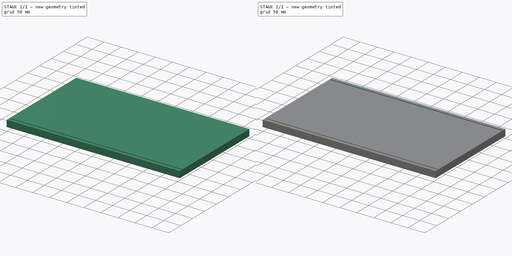
[diagram: build sequence overview — one tinted view per stage of 2, left to right]
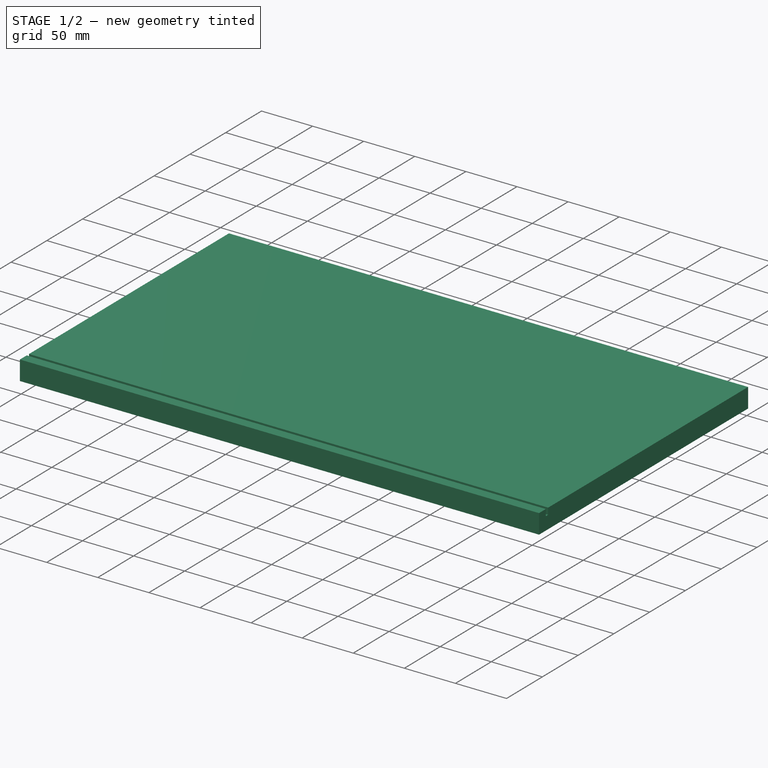
[diagram: stage 1 of 2 — iso view after this stage's code; geometry added in this stage tinted green]
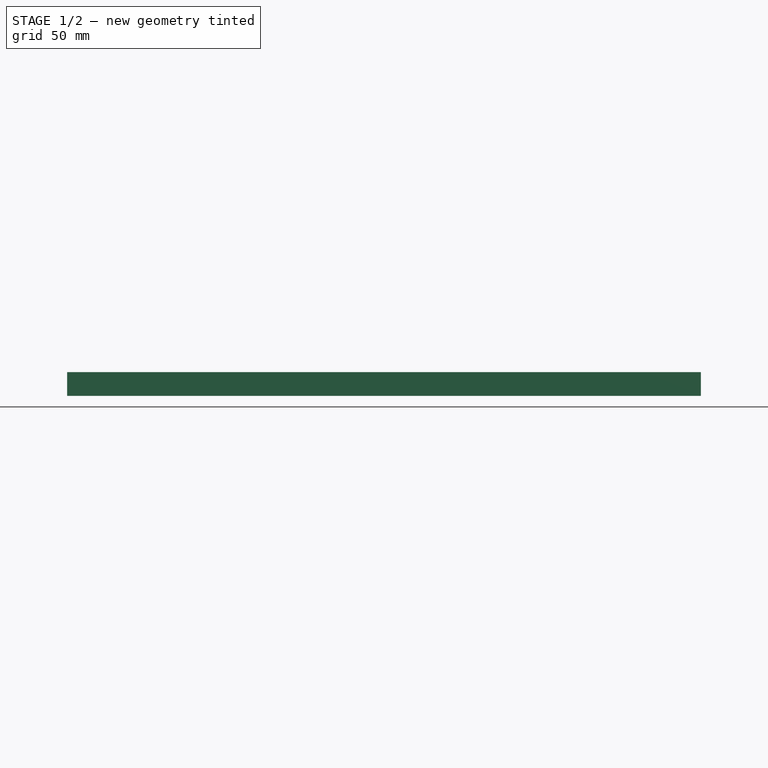
[diagram: stage 1 of 2 — front view after this stage's code; geometry added in this stage tinted green]
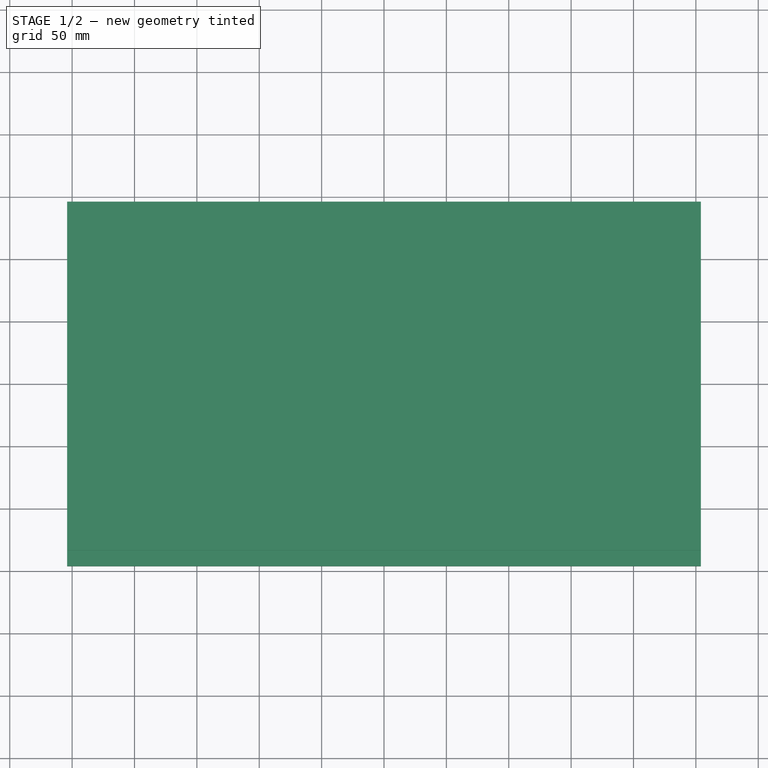
[diagram: stage 1 of 2 — top view after this stage's code; geometry added in this stage tinted green]
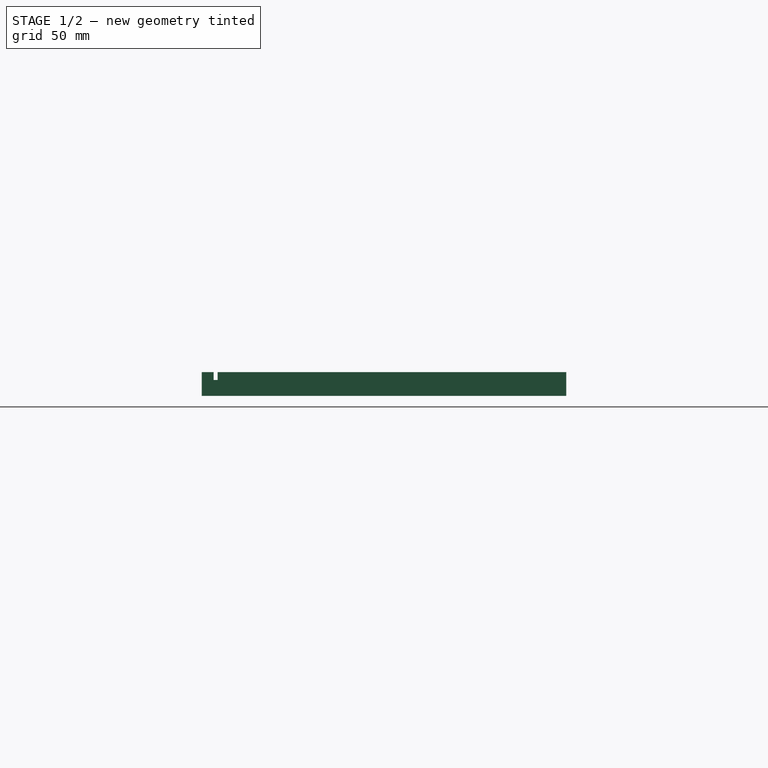
[diagram: stage 1 of 2 — right view after this stage's code; geometry added in this stage tinted green]
FCSTD DOCUMENT  (FreeCAD 0.19R24291 (Git))
Label: botpanel
License: All rights reserved
LicenseURL: http://en.wikipedia.org/wiki/All_rights_reserved
objects: PartDesign::SubtractiveBox×2, Sketcher::SketchObject×1, PartDesign::Pad×1, PartDesign::Body×1
note: 8 computed .brp shape members not serialized (recipe doc carries the construction recipe); baked Part::Feature solids carry a one-line shape summary decoded from their .brp

FEATURE [Sketcher::SketchObject] Sketch
  FullyConstrained = false
  MapMode = 5
  Support = -> [XY_Plane001]
  sketch-geometry (4):
    g0: LineSegment StartX=-254 StartY=-146.05 StartZ=0 EndX=254 EndY=-146.05 EndZ=0
    g1: LineSegment StartX=254 StartY=-146.05 StartZ=0 EndX=254 EndY=146.05 EndZ=0
    g2: LineSegment StartX=254 StartY=146.05 StartZ=0 EndX=-254 EndY=146.05 EndZ=0
    g3: LineSegment StartX=-254 StartY=146.05 StartZ=0 EndX=-254 EndY=-146.05 EndZ=0
  constraints (8):
    c: Coincident(g0,g1)
    c: Coincident(g1,g2)
    c: Coincident(g2,g3)
    c: Coincident(g3,g0)
    c: Horizontal(g0)
    c: Horizontal(g2)
    c: Vertical(g1)
    c: Vertical(g3)
FEATURE [PartDesign::Pad] Pad
  Direction = (1,1,1)
  Length = 19.05
  Length2 = 99.9998
  Profile = -> Sketch
  Refine = true
  Type = 0
FEATURE [PartDesign::SubtractiveBox] Box
  AttacherType = Attacher::AttachEngine3D
  AttachmentOffset = pos=(-254,-136.525,-6.35) rot=(0,0,1;0rad)
  BaseFeature = -> Pad
  Height = 6.35
  Length = 508
  MapMode = 5
  Placement = pos=(-254,-136.525,12.7) rot=(0,0,1;0rad)
  Refine = true
  Support = -> [Pad]
  Width = 3.175
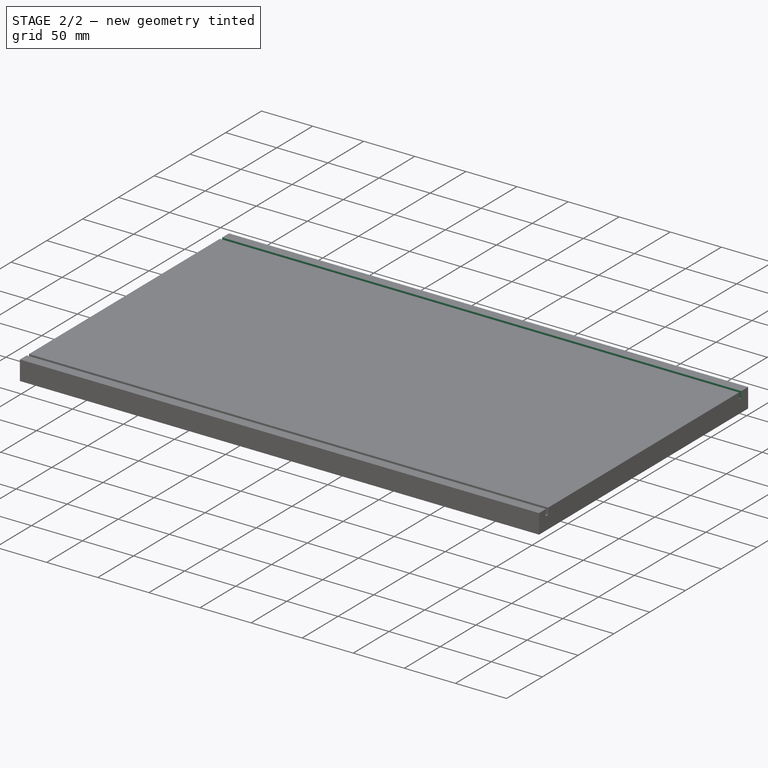
[diagram: stage 2 of 2 — iso view after this stage's code; geometry added in this stage tinted green]
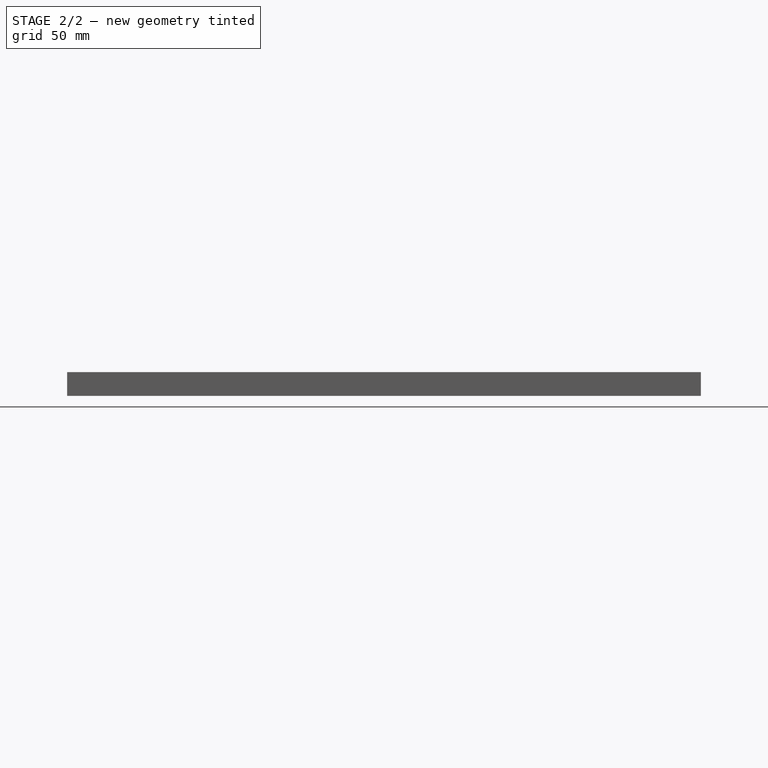
[diagram: stage 2 of 2 — front view after this stage's code; geometry added in this stage tinted green]
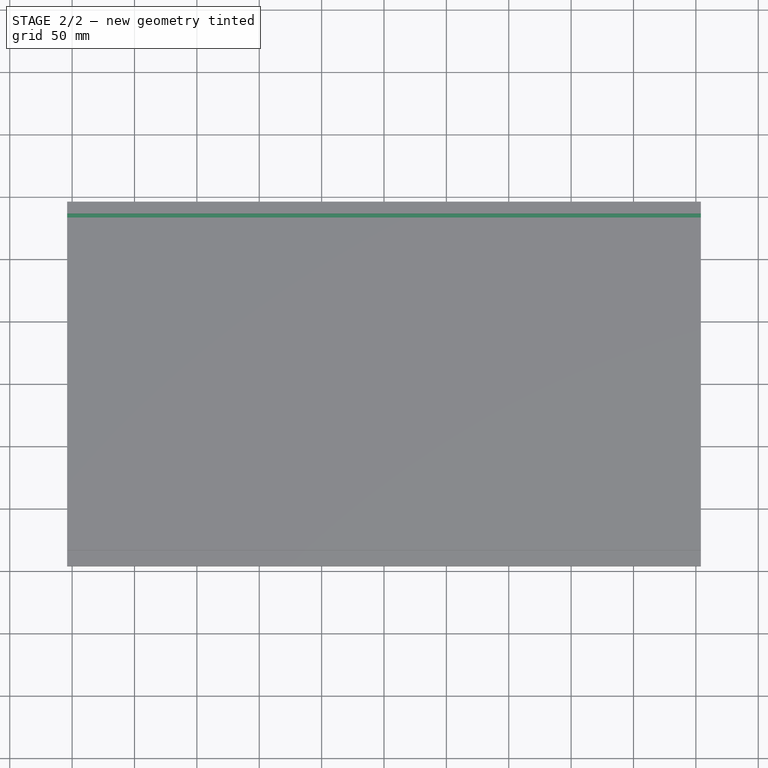
[diagram: stage 2 of 2 — top view after this stage's code; geometry added in this stage tinted green]
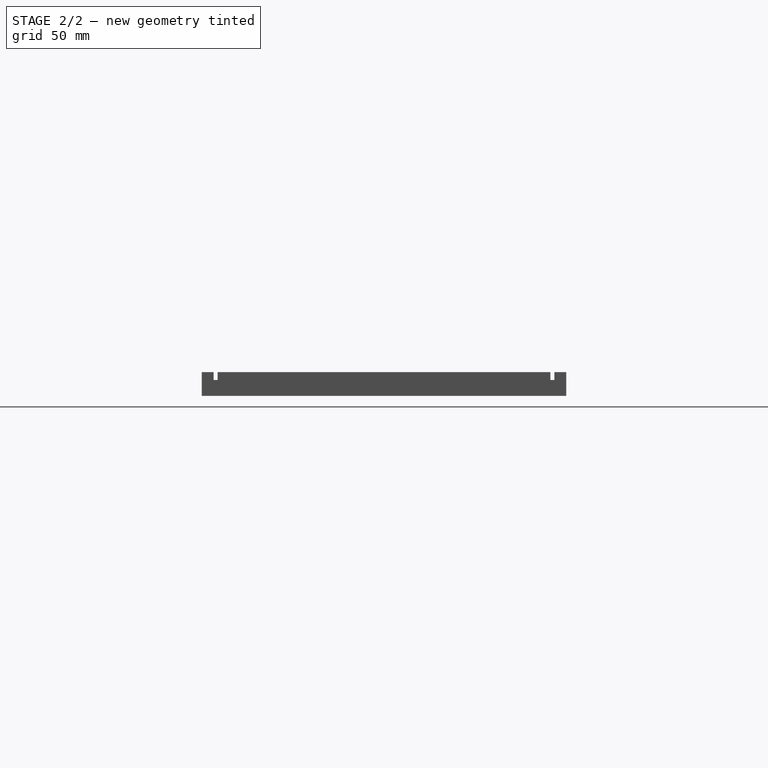
[diagram: stage 2 of 2 — right view after this stage's code; geometry added in this stage tinted green]
FEATURE [PartDesign::SubtractiveBox] Box001
  AttacherType = Attacher::AttachEngine3D
  AttachmentOffset = pos=(0,269.875,-6.35) rot=(0,0,1;0rad)
  BaseFeature = -> Box
  Height = 6.35
  Length = 508
  MapMode = 5
  Placement = pos=(-254,133.35,12.7) rot=(0,0,1;0rad)
  Refine = true
  Support = -> [Box]
  Width = 3.175
FEATURE [PartDesign::Body] Body001
  Group = -> [Sketch,Pad,Box,Box001]
  Origin = -> Origin001
  Tip = -> Box001
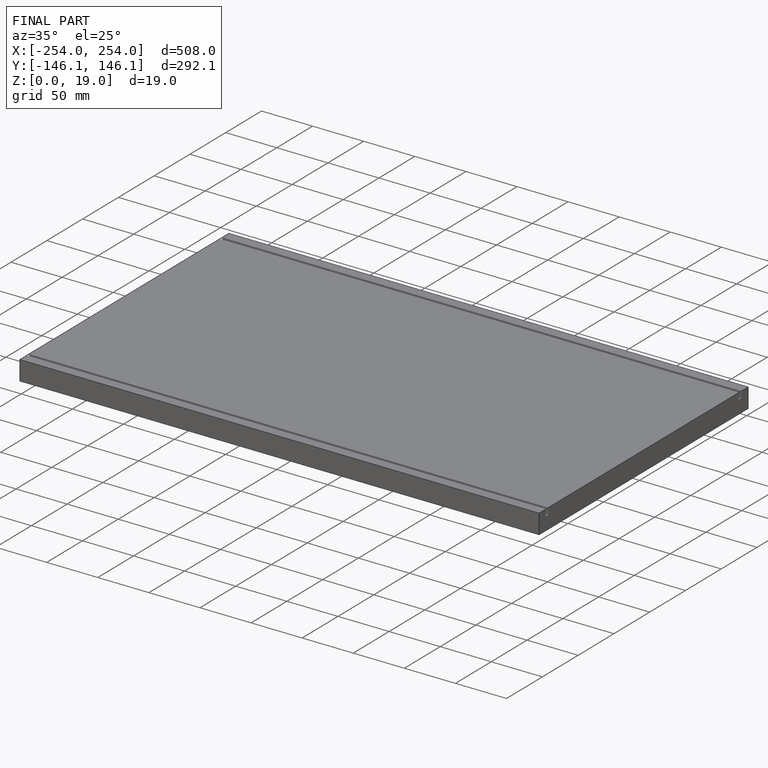
[diagram: finished part — iso view with bounding-box wireframe]
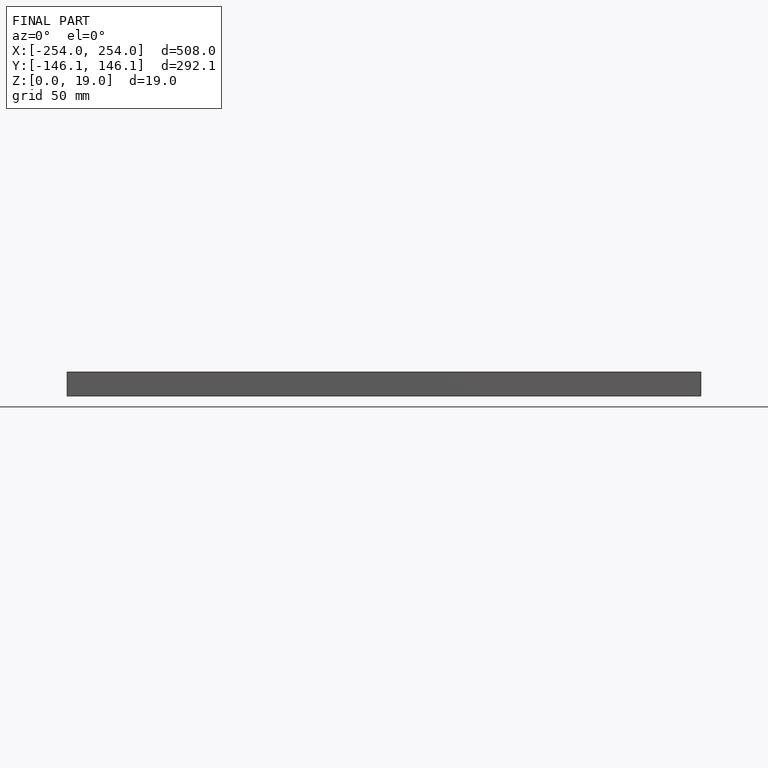
[diagram: finished part — front view with bounding-box wireframe]
